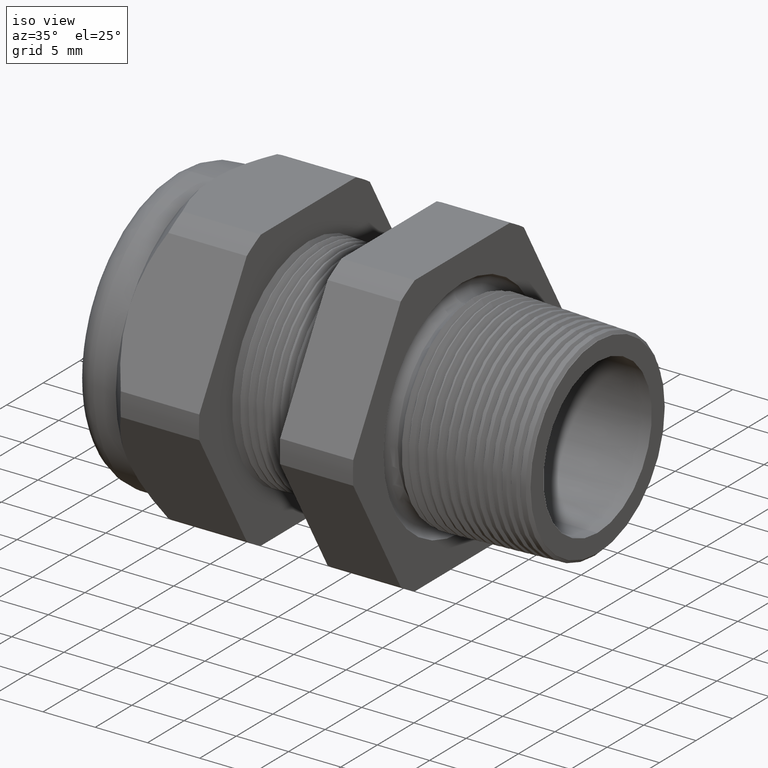
[diagram: clean part render]
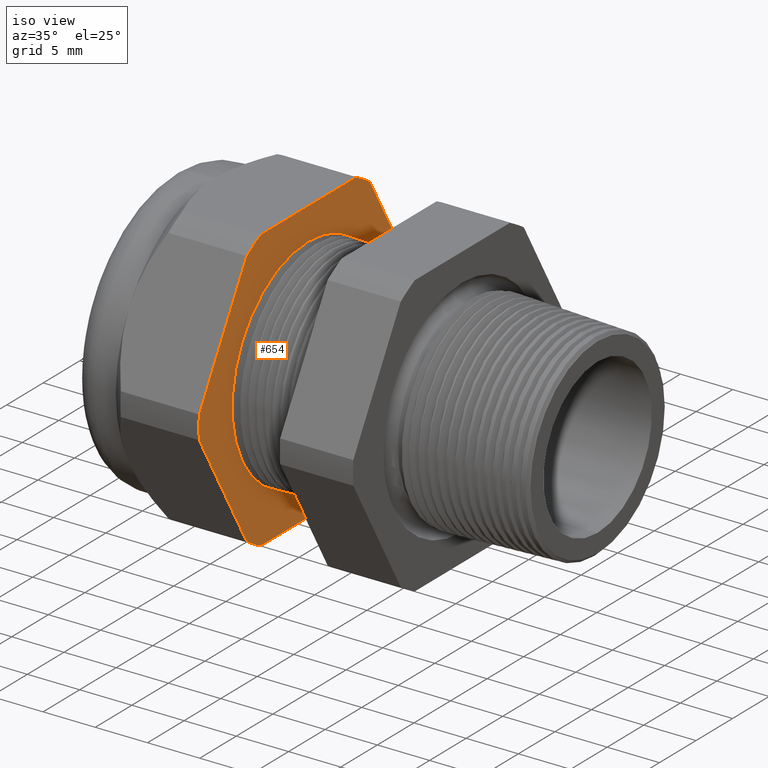
[diagram: same view with one face highlighted and labeled with its STEP entity id]
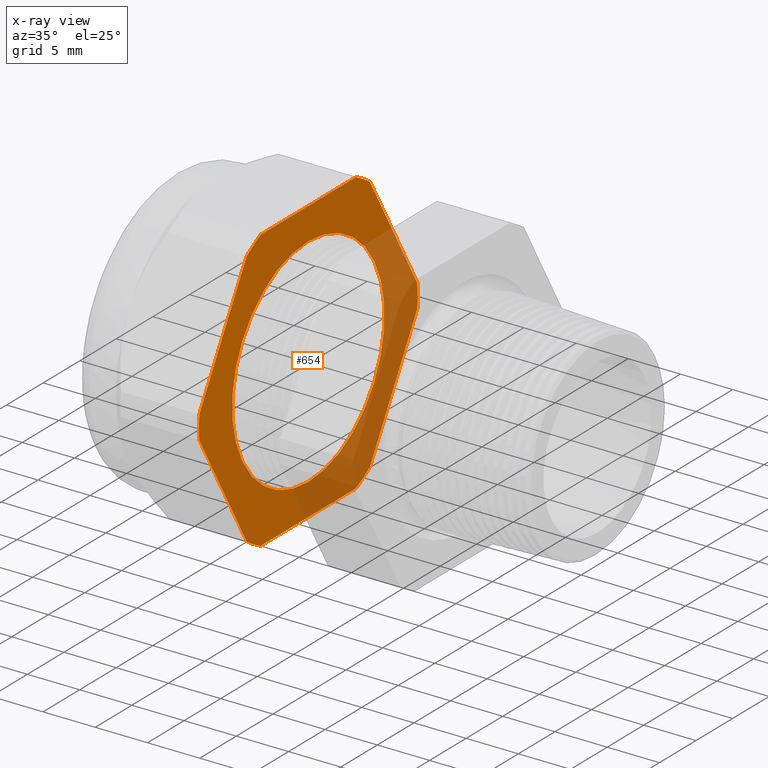
[diagram: x-ray of the same camera — body ghosted, the highlighted face saturated]
A machine part, iso view. The second image highlights one B-rep face of the part: STEP entity #654.
The next image is the same camera in x-ray: the body ghosted, the highlighted face saturated — about 36% of this face is hidden behind the body in this view.
In plain terms, the highlighted planar face has unit normal (1, 0, 0).
Its self-contained STEP definition (entity closure, byte-faithful):
#315 = VERTEX_POINT ( 'NONE', #1752 ) ;
#329 = EDGE_CURVE ( 'NONE', #345, #315, #1791, .T. ) ;
#345 = VERTEX_POINT ( 'NONE', #1822 ) ;
#430 = VERTEX_POINT ( 'NONE', #1988 ) ;
#438 = EDGE_CURVE ( 'NONE', #5404, #5419, #1976, .T. ) ;
#443 = VERTEX_POINT ( 'NONE', #2023 ) ;
#465 = EDGE_CURVE ( 'NONE', #5419, #5408, #2038, .T. ) ;
#472 = EDGE_CURVE ( 'NONE', #549, #480, #2116, .T. ) ;
#476 = EDGE_CURVE ( 'NONE', #495, #430, #2111, .T. ) ;
#480 = VERTEX_POINT ( 'NONE', #2092 ) ;
#486 = EDGE_CURVE ( 'NONE', #480, #495, #2145, .T. ) ;
#490 = EDGE_CURVE ( 'NONE', #430, #443, #2134, .T. ) ;
#495 = VERTEX_POINT ( 'NONE', #2119 ) ;
#507 = EDGE_CURVE ( 'NONE', #443, #5404, #2156, .T. ) ;
#538 = EDGE_CURVE ( 'NONE', #5381, #549, #2218, .T. ) ;
#549 = VERTEX_POINT ( 'NONE', #2259 ) ;
#633 = EDGE_CURVE ( 'NONE', #315, #345, #2365, .T. ) ;
#634 = ORIENTED_EDGE ( 'NONE', *, *, #329, .F. ) ;
#635 = EDGE_LOOP ( 'NONE', ( #636, #637, #638, #639, #640, #641, #642, #702, #703, #704, #705, #706 ) ) ;
#636 = ORIENTED_EDGE ( 'NONE', *, *, #5436, .T. ) ;
#637 = ORIENTED_EDGE ( 'NONE', *, *, #538, .T. ) ;
#638 = ORIENTED_EDGE ( 'NONE', *, *, #472, .T. ) ;
#639 = ORIENTED_EDGE ( 'NONE', *, *, #486, .T. ) ;
#640 = ORIENTED_EDGE ( 'NONE', *, *, #476, .T. ) ;
#641 = ORIENTED_EDGE ( 'NONE', *, *, #490, .T. ) ;
#642 = ORIENTED_EDGE ( 'NONE', *, *, #507, .T. ) ;
#654 = ADVANCED_FACE ( 'NONE', ( #2403, #2402 ), #2401, .T. ) ;
#655 = EDGE_LOOP ( 'NONE', ( #4912, #634 ) ) ;
#702 = ORIENTED_EDGE ( 'NONE', *, *, #438, .T. ) ;
#703 = ORIENTED_EDGE ( 'NONE', *, *, #465, .T. ) ;
#704 = ORIENTED_EDGE ( 'NONE', *, *, #5414, .T. ) ;
#705 = ORIENTED_EDGE ( 'NONE', *, *, #5432, .T. ) ;
#706 = ORIENTED_EDGE ( 'NONE', *, *, #5365, .T. ) ;
#1752 = CARTESIAN_POINT ( 'NONE',  ( -0.8903149606299211000, 0.0000000000000000000, 0.4099999999999999800 ) ) ;
#1787 = DIRECTION ( 'NONE',  ( 0.0000000000000000000, 0.0000000000000000000, -1.000000000000000000 ) ) ;
#1788 = DIRECTION ( 'NONE',  ( 1.000000000000000000, 0.0000000000000000000, 0.0000000000000000000 ) ) ;
#1789 = CARTESIAN_POINT ( 'NONE',  ( -0.8903149606299211000, 0.0000000000000000000, 0.0000000000000000000 ) ) ;
#1790 = AXIS2_PLACEMENT_3D ( 'NONE', #1789, #1788, #1787 ) ;
#1791 = CIRCLE ( 'NONE', #1790, 0.4099999999999999800 ) ;
#1822 = CARTESIAN_POINT ( 'NONE',  ( -0.8903149606299211000, 5.021051876504148100E-017, -0.4099999999999999800 ) ) ;
#1972 = DIRECTION ( 'NONE',  ( 0.0000000000000000000, 0.0000000000000000000, -1.000000000000000000 ) ) ;
#1973 = DIRECTION ( 'NONE',  ( 1.000000000000000000, 0.0000000000000000000, 0.0000000000000000000 ) ) ;
#1974 = CARTESIAN_POINT ( 'NONE',  ( -0.8903149606299211000, 0.0000000000000000000, 0.0000000000000000000 ) ) ;
#1975 = AXIS2_PLACEMENT_3D ( 'NONE', #1974, #1973, #1972 ) ;
#1976 = CIRCLE ( 'NONE', #1975, 0.5883000000000000500 ) ;
#1988 = CARTESIAN_POINT ( 'NONE',  ( -0.8903149606299207700, -0.2553368167734533200, 0.5299999999999999200 ) ) ;
#2023 = CARTESIAN_POINT ( 'NONE',  ( -0.8903149606299207700, -0.3313250556190260900, 0.4861281698472629800 ) ) ;
#2029 = DIRECTION ( 'NONE',  ( 0.0000000000000000000, 0.5000000000000001100, -0.8660254037844386000 ) ) ;
#2030 = VECTOR ( 'NONE', #2029, 39.37007874015748100 ) ;
#2037 = CARTESIAN_POINT ( 'NONE',  ( -0.8903149606299211000, -0.3564934640057523800, -0.4425352077758099600 ) ) ;
#2038 = LINE ( 'NONE', #2037, #2030 ) ;
#2092 = CARTESIAN_POINT ( 'NONE',  ( -0.8903149606299207700, 0.3313250556190259800, 0.4861281698472629800 ) ) ;
#2103 = DIRECTION ( 'NONE',  ( 0.0000000000000000000, -1.000000000000000000, 0.0000000000000000000 ) ) ;
#2104 = VECTOR ( 'NONE', #2103, 39.37007874015748100 ) ;
#2105 = CARTESIAN_POINT ( 'NONE',  ( -0.8903149606299211000, 0.4099999999999999800, 0.5299999999999999200 ) ) ;
#2111 = LINE ( 'NONE', #2105, #2104 ) ;
#2113 = DIRECTION ( 'NONE',  ( 0.0000000000000000000, -0.5000000000000001100, 0.8660254037844384900 ) ) ;
#2114 = VECTOR ( 'NONE', #2113, 39.37007874015748900 ) ;
#2115 = CARTESIAN_POINT ( 'NONE',  ( -0.8903149606299211000, 0.5614934640057526200, 0.08746479222419019400 ) ) ;
#2116 = LINE ( 'NONE', #2115, #2114 ) ;
#2119 = CARTESIAN_POINT ( 'NONE',  ( -0.8903149606299207700, 0.2553368167734533200, 0.5299999999999999200 ) ) ;
#2130 = DIRECTION ( 'NONE',  ( 0.0000000000000000000, 0.0000000000000000000, -1.000000000000000000 ) ) ;
#2131 = DIRECTION ( 'NONE',  ( 1.000000000000000000, 0.0000000000000000000, 0.0000000000000000000 ) ) ;
#2132 = CARTESIAN_POINT ( 'NONE',  ( -0.8903149606299211000, 0.0000000000000000000, 0.0000000000000000000 ) ) ;
#2133 = AXIS2_PLACEMENT_3D ( 'NONE', #2132, #2131, #2130 ) ;
#2134 = CIRCLE ( 'NONE', #2133, 0.5882999999999999300 ) ;
#2141 = DIRECTION ( 'NONE',  ( 0.0000000000000000000, 0.0000000000000000000, -1.000000000000000000 ) ) ;
#2142 = DIRECTION ( 'NONE',  ( 1.000000000000000000, 0.0000000000000000000, 0.0000000000000000000 ) ) ;
#2143 = CARTESIAN_POINT ( 'NONE',  ( -0.8903149606299211000, 0.0000000000000000000, 0.0000000000000000000 ) ) ;
#2144 = AXIS2_PLACEMENT_3D ( 'NONE', #2143, #2142, #2141 ) ;
#2145 = CIRCLE ( 'NONE', #2144, 0.5882999999999999300 ) ;
#2147 = DIRECTION ( 'NONE',  ( 0.0000000000000000000, -0.4999999999999996100, -0.8660254037844388200 ) ) ;
#2148 = VECTOR ( 'NONE', #2147, 39.37007874015748900 ) ;
#2155 = CARTESIAN_POINT ( 'NONE',  ( -0.8903149606299211000, -0.3564934640057526600, 0.4425352077758096200 ) ) ;
#2156 = LINE ( 'NONE', #2155, #2148 ) ;
#2214 = DIRECTION ( 'NONE',  ( 0.0000000000000000000, 0.0000000000000000000, -1.000000000000000000 ) ) ;
#2215 = DIRECTION ( 'NONE',  ( 1.000000000000000000, 0.0000000000000000000, 0.0000000000000000000 ) ) ;
#2216 = CARTESIAN_POINT ( 'NONE',  ( -0.8903149606299211000, 0.0000000000000000000, 0.0000000000000000000 ) ) ;
#2217 = AXIS2_PLACEMENT_3D ( 'NONE', #2216, #2215, #2214 ) ;
#2218 = CIRCLE ( 'NONE', #2217, 0.5883000000000001600 ) ;
#2259 = CARTESIAN_POINT ( 'NONE',  ( -0.8903149606299207700, 0.5866618723924792400, 0.04387183015273709400 ) ) ;
#2363 = CARTESIAN_POINT ( 'NONE',  ( -0.8903149606299211000, 0.0000000000000000000, 0.0000000000000000000 ) ) ;
#2364 = AXIS2_PLACEMENT_3D ( 'NONE', #2363, #2425, #2424 ) ;
#2365 = CIRCLE ( 'NONE', #2364, 0.4099999999999999800 ) ;
#2397 = DIRECTION ( 'NONE',  ( 0.0000000000000000000, 0.0000000000000000000, -1.000000000000000000 ) ) ;
#2398 = DIRECTION ( 'NONE',  ( 1.000000000000000000, 0.0000000000000000000, 0.0000000000000000000 ) ) ;
#2399 = CARTESIAN_POINT ( 'NONE',  ( -0.8903149606299211000, 0.4099999999999999800, 0.0000000000000000000 ) ) ;
#2400 = AXIS2_PLACEMENT_3D ( 'NONE', #2399, #2398, #2397 ) ;
#2401 = PLANE ( 'NONE',  #2400 ) ;
#2402 = FACE_OUTER_BOUND ( 'NONE', #635, .T. ) ;
#2403 = FACE_BOUND ( 'NONE', #655, .T. ) ;
#2424 = DIRECTION ( 'NONE',  ( 0.0000000000000000000, 0.0000000000000000000, -1.000000000000000000 ) ) ;
#2425 = DIRECTION ( 'NONE',  ( 1.000000000000000000, 0.0000000000000000000, 0.0000000000000000000 ) ) ;
#4166 = DIRECTION ( 'NONE',  ( 0.0000000000000000000, 0.0000000000000000000, -1.000000000000000000 ) ) ;
#4167 = DIRECTION ( 'NONE',  ( 1.000000000000000000, 0.0000000000000000000, 0.0000000000000000000 ) ) ;
#4168 = CARTESIAN_POINT ( 'NONE',  ( -0.8903149606299211000, 0.0000000000000000000, 0.0000000000000000000 ) ) ;
#4169 = AXIS2_PLACEMENT_3D ( 'NONE', #4168, #4167, #4166 ) ;
#4170 = CIRCLE ( 'NONE', #4169, 0.5882999999999999300 ) ;
#4186 = CARTESIAN_POINT ( 'NONE',  ( -0.8903149606299211000, 0.5866618723924790200, -0.04387183015273728200 ) ) ;
#4211 = CARTESIAN_POINT ( 'NONE',  ( -0.8903149606299207700, 0.3313250556190262000, -0.4861281698472627600 ) ) ;
#4251 = DIRECTION ( 'NONE',  ( 0.0000000000000000000, 0.0000000000000000000, -1.000000000000000000 ) ) ;
#4252 = DIRECTION ( 'NONE',  ( 1.000000000000000000, 0.0000000000000000000, 0.0000000000000000000 ) ) ;
#4253 = CARTESIAN_POINT ( 'NONE',  ( -0.8903149606299211000, 0.0000000000000000000, 0.0000000000000000000 ) ) ;
#4254 = AXIS2_PLACEMENT_3D ( 'NONE', #4253, #4252, #4251 ) ;
#4255 = CIRCLE ( 'NONE', #4254, 0.5883000000000000500 ) ;
#4262 = CARTESIAN_POINT ( 'NONE',  ( -0.8903149606299207700, -0.3313250556190258700, -0.4861281698472630400 ) ) ;
#4268 = CARTESIAN_POINT ( 'NONE',  ( -0.8903149606299207700, -0.5866618723924792400, 0.04387183015273651100 ) ) ;
#4288 = CARTESIAN_POINT ( 'NONE',  ( -0.8903149606299207700, -0.2553368167734531000, -0.5300000000000001400 ) ) ;
#4299 = CARTESIAN_POINT ( 'NONE',  ( -0.8903149606299207700, -0.5866618723924791300, -0.04387183015273717100 ) ) ;
#4305 = CARTESIAN_POINT ( 'NONE',  ( -0.8903149606299207700, 0.2553368167734529900, -0.5300000000000001400 ) ) ;
#4316 = DIRECTION ( 'NONE',  ( 0.0000000000000000000, 0.4999999999999998300, 0.8660254037844386000 ) ) ;
#4317 = VECTOR ( 'NONE', #4316, 39.37007874015748900 ) ;
#4318 = CARTESIAN_POINT ( 'NONE',  ( -0.8903149606299211000, 0.5614934640057526200, -0.08746479222419013800 ) ) ;
#4319 = LINE ( 'NONE', #4318, #4317 ) ;
#4326 = DIRECTION ( 'NONE',  ( 0.0000000000000000000, 1.000000000000000000, 0.0000000000000000000 ) ) ;
#4327 = VECTOR ( 'NONE', #4326, 39.37007874015748100 ) ;
#4336 = CARTESIAN_POINT ( 'NONE',  ( -0.8903149606299211000, 0.4099999999999999800, -0.5300000000000001400 ) ) ;
#4337 = LINE ( 'NONE', #4336, #4327 ) ;
#4912 = ORIENTED_EDGE ( 'NONE', *, *, #633, .F. ) ;
#5365 = EDGE_CURVE ( 'NONE', #5441, #5372, #4170, .T. ) ;
#5372 = VERTEX_POINT ( 'NONE', #4211 ) ;
#5381 = VERTEX_POINT ( 'NONE', #4186 ) ;
#5404 = VERTEX_POINT ( 'NONE', #4268 ) ;
#5408 = VERTEX_POINT ( 'NONE', #4262 ) ;
#5414 = EDGE_CURVE ( 'NONE', #5408, #5424, #4255, .T. ) ;
#5419 = VERTEX_POINT ( 'NONE', #4299 ) ;
#5424 = VERTEX_POINT ( 'NONE', #4288 ) ;
#5432 = EDGE_CURVE ( 'NONE', #5424, #5441, #4337, .T. ) ;
#5436 = EDGE_CURVE ( 'NONE', #5372, #5381, #4319, .T. ) ;
#5441 = VERTEX_POINT ( 'NONE', #4305 ) ;